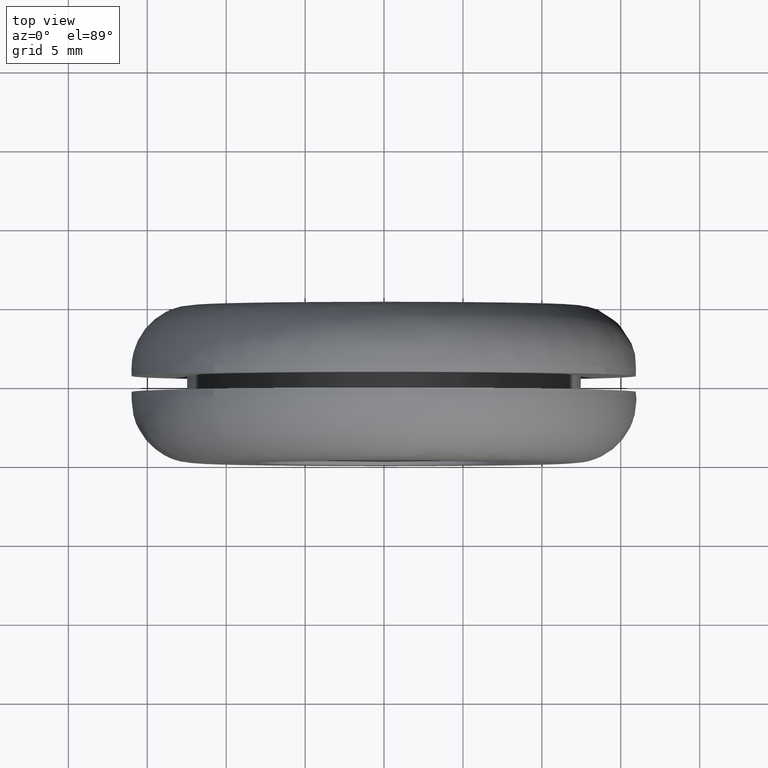
[diagram: clean part render]
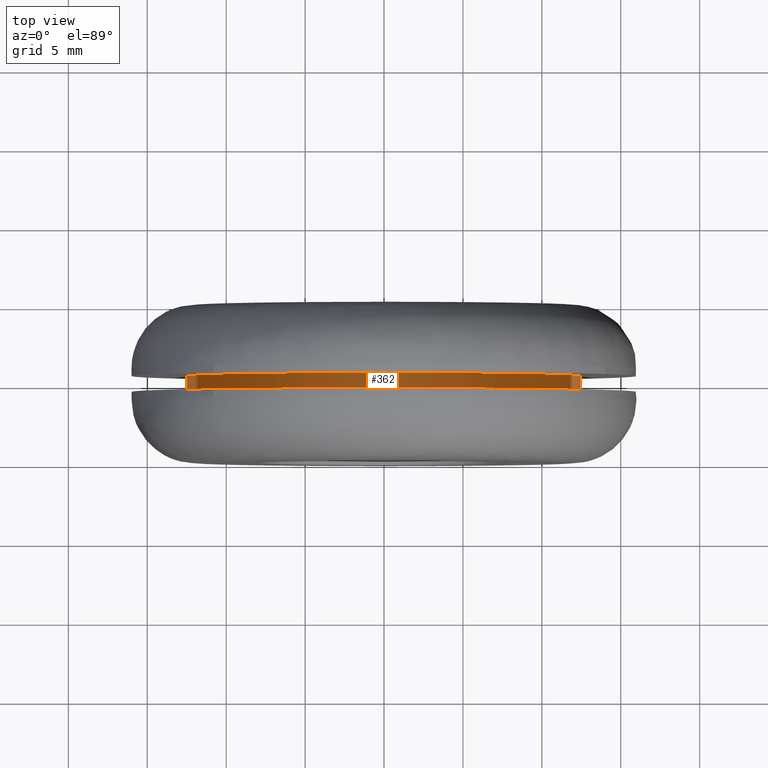
[diagram: same view with one face highlighted and labeled with its STEP entity id]
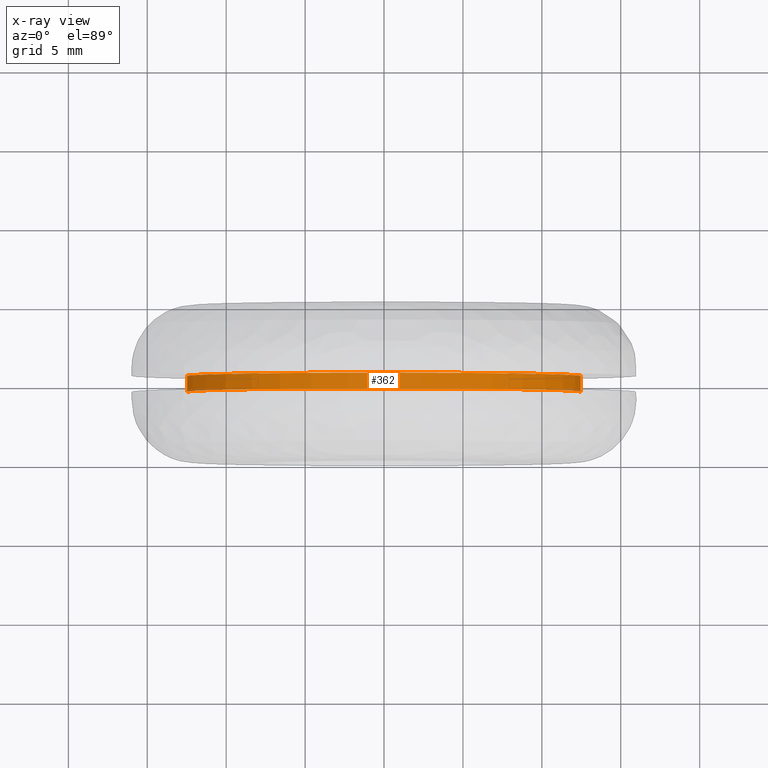
[diagram: x-ray of the same camera — body ghosted, the highlighted face saturated]
A machine part, top view. The second image highlights one B-rep face of the part: STEP entity #362.
The next image is the same camera in x-ray: the body ghosted, the highlighted face saturated — about 2% of this face is hidden behind the body in this view.
In plain terms, the highlighted face is a freeform B-spline surface patch.
Its self-contained STEP definition (entity closure, byte-faithful):
#260=CARTESIAN_POINT('',(12.412619079545834,5.525000000000002,-1.475427933209482));
#261=CARTESIAN_POINT('',(12.454845193107571,5.525000000000002,-1.120184107974722));
#262=CARTESIAN_POINT('',(12.476684980273340,5.525000000000001,-0.763106744185713));
#263=CARTESIAN_POINT('',(13.239791724459048,5.525000000000000,11.713578236087622));
#264=CARTESIAN_POINT('',(0.763106744185712,5.525000000000001,12.476684980273340));
#265=CARTESIAN_POINT('',(-11.713578236087622,5.525000000000000,13.239791724459048));
#266=CARTESIAN_POINT('',(-12.476684980273340,5.525000000000001,0.763106744185712));
#267=CARTESIAN_POINT('',(12.412619079545834,4.474374999999999,-1.475427933209482));
#268=CARTESIAN_POINT('',(12.454845193107571,4.474374999999999,-1.120184107974722));
#269=CARTESIAN_POINT('',(12.476684980273340,4.474374999999999,-0.763106744185713));
#270=CARTESIAN_POINT('',(13.239791724459048,4.474374999999999,11.713578236087622));
#271=CARTESIAN_POINT('',(0.763106744185712,4.474374999999999,12.476684980273340));
#272=CARTESIAN_POINT('',(-11.713578236087622,4.474374999999999,13.239791724459048));
#273=CARTESIAN_POINT('',(-12.476684980273340,4.474374999999999,0.763106744185712));
#281=(BOUNDED_SURFACE()B_SPLINE_SURFACE(2,1,((#260,#267),(#261,#268),(#262,#269),(#263,#270),(#264,#271),(#265,#272),(#266,#273)),.UNSPECIFIED.,.F.,.F.,.U.)B_SPLINE_SURFACE_WITH_KNOTS((3,2,2,3),(2,2),(0.0,0.828427124746191,21.539105243400940,42.249783362055702),(0.0,1.0),.UNSPECIFIED.)GEOMETRIC_REPRESENTATION_ITEM()RATIONAL_B_SPLINE_SURFACE(((0.977505800795127,0.977505800795127),(0.988284271247462,0.988284271247462),(1.0,1.0),(0.707106781186548,0.707106781186548),(1.0,1.0),(0.707106781186548,0.707106781186548),(1.0,1.0)))REPRESENTATION_ITEM('')SURFACE());
#282=CARTESIAN_POINT('',(12.412620618392291,4.500000000000158,-1.475414986941843));
#283=VERTEX_POINT('',#282);
#284=CARTESIAN_POINT('',(0.0,4.500000000000000,12.500000000000000));
#285=VERTEX_POINT('',#284);
#286=CARTESIAN_POINT('',(12.412620618392285,4.500000000000158,-1.475414986941843));
#287=CARTESIAN_POINT('',(12.500000000000002,4.500000000000000,-0.740294954082926));
#288=CARTESIAN_POINT('',(12.500000000000000,4.500000000000000,-3.061516E-016));
#289=CARTESIAN_POINT('',(12.499999999999998,4.500000000000000,12.499999999999998));
#290=CARTESIAN_POINT('',(0.0,4.500000000000000,12.500000000000000));
#298=(BOUNDED_CURVE()B_SPLINE_CURVE(2,(#286,#287,#288,#289,#290),.UNSPECIFIED.,.F.,.U.)B_SPLINE_CURVE_WITH_KNOTS((3,2,3),(0.229562649784764,0.250000000000000,0.500000000000000),.UNSPECIFIED.)CURVE()GEOMETRIC_REPRESENTATION_ITEM()RATIONAL_B_SPLINE_CURVE((0.956027099682864,0.976056154845766,1.0,0.707106781186547,1.0))REPRESENTATION_ITEM(''));
#299=EDGE_CURVE('',#283,#285,#298,.T.);
#300=ORIENTED_EDGE('',*,*,#299,.F.);
#301=CARTESIAN_POINT('',(12.412620599407919,5.500000000000000,-1.475415146658134));
#302=VERTEX_POINT('',#301);
#303=CARTESIAN_POINT('',(12.412620599407919,5.500000000000000,-1.475415146658134));
#304=CARTESIAN_POINT('',(12.412620618392291,4.500000000000158,-1.475414986941843));
#305=QUASI_UNIFORM_CURVE('',1,(#303,#304),.UNSPECIFIED.,.F.,.U.);
#306=EDGE_CURVE('',#302,#283,#305,.T.);
#307=ORIENTED_EDGE('',*,*,#306,.F.);
#308=CARTESIAN_POINT('',(0.0,5.500000000000000,12.500000000000000));
#309=VERTEX_POINT('',#308);
#310=CARTESIAN_POINT('',(12.412620599407926,5.500000000000000,-1.475415146658134));
#311=CARTESIAN_POINT('',(12.500000000000002,5.500000000000000,-0.740295034785297));
#312=CARTESIAN_POINT('',(12.500000000000000,5.500000000000000,-3.061516E-016));
#313=CARTESIAN_POINT('',(12.499999999999998,5.500000000000000,12.499999999999998));
#314=CARTESIAN_POINT('',(0.0,5.500000000000000,12.500000000000000));
#322=(BOUNDED_CURVE()B_SPLINE_CURVE(2,(#310,#311,#312,#313,#314),.UNSPECIFIED.,.F.,.U.)B_SPLINE_CURVE_WITH_KNOTS((3,2,3),(0.229562647610156,0.250000000000000,0.500000000000000),.UNSPECIFIED.)CURVE()GEOMETRIC_REPRESENTATION_ITEM()RATIONAL_B_SPLINE_CURVE((0.956027095420537,0.976056152298055,1.0,0.707106781186547,1.0))REPRESENTATION_ITEM(''));
#323=EDGE_CURVE('',#302,#309,#322,.T.);
#324=ORIENTED_EDGE('',*,*,#323,.T.);
#325=CARTESIAN_POINT('',(-12.476685302680121,5.500000000000000,0.763101472844820));
#326=VERTEX_POINT('',#325);
#327=CARTESIAN_POINT('',(0.0,5.500000000000000,12.500000000000000));
#328=CARTESIAN_POINT('',(-11.758830813654541,5.500000000000000,12.499999999999998));
#329=CARTESIAN_POINT('',(-12.476685302680121,5.500000000000000,0.763101472844820));
#337=(BOUNDED_CURVE()B_SPLINE_CURVE(2,(#327,#328,#329),.UNSPECIFIED.,.F.,.U.)B_SPLINE_CURVE_WITH_KNOTS((3,3),(0.500000000000000,0.739333035142182),.UNSPECIFIED.)CURVE()GEOMETRIC_REPRESENTATION_ITEM()RATIONAL_B_SPLINE_CURVE((1.0,0.719603907875253,0.976072197912286))REPRESENTATION_ITEM(''));
#338=EDGE_CURVE('',#309,#326,#337,.T.);
#339=ORIENTED_EDGE('',*,*,#338,.T.);
#340=CARTESIAN_POINT('',(-12.476685306703670,4.500000000000192,0.763101407059438));
#341=VERTEX_POINT('',#340);
#342=CARTESIAN_POINT('',(-12.476685302680121,5.500000000000000,0.763101472844820));
#343=CARTESIAN_POINT('',(-12.476685306703670,4.500000000000192,0.763101407059438));
#344=QUASI_UNIFORM_CURVE('',1,(#342,#343),.UNSPECIFIED.,.F.,.U.);
#345=EDGE_CURVE('',#326,#341,#344,.T.);
#346=ORIENTED_EDGE('',*,*,#345,.T.);
#347=CARTESIAN_POINT('',(0.0,4.500000000000000,12.500000000000000));
#348=CARTESIAN_POINT('',(-11.758830875770775,4.500000000000000,12.499999999999998));
#349=CARTESIAN_POINT('',(-12.476685306703670,4.500000000000192,0.763101407059438));
#357=(BOUNDED_CURVE()B_SPLINE_CURVE(2,(#347,#348,#349),.UNSPECIFIED.,.F.,.U.)B_SPLINE_CURVE_WITH_KNOTS((3,3),(0.500000000000000,0.739333036051963),.UNSPECIFIED.)CURVE()GEOMETRIC_REPRESENTATION_ITEM()RATIONAL_B_SPLINE_CURVE((1.0,0.719603906809378,0.976072199862122))REPRESENTATION_ITEM(''));
#358=EDGE_CURVE('',#285,#341,#357,.T.);
#359=ORIENTED_EDGE('',*,*,#358,.F.);
#360=EDGE_LOOP('',(#300,#307,#324,#339,#346,#359));
#361=FACE_OUTER_BOUND('',#360,.T.);
#362=ADVANCED_FACE('',(#361),#281,.T.);